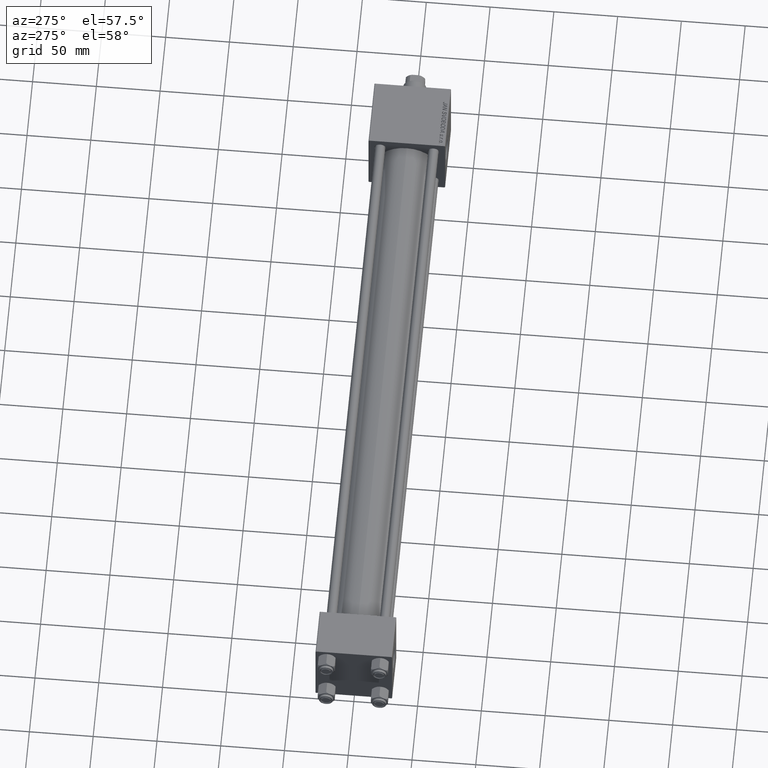
[diagram: clean part render]
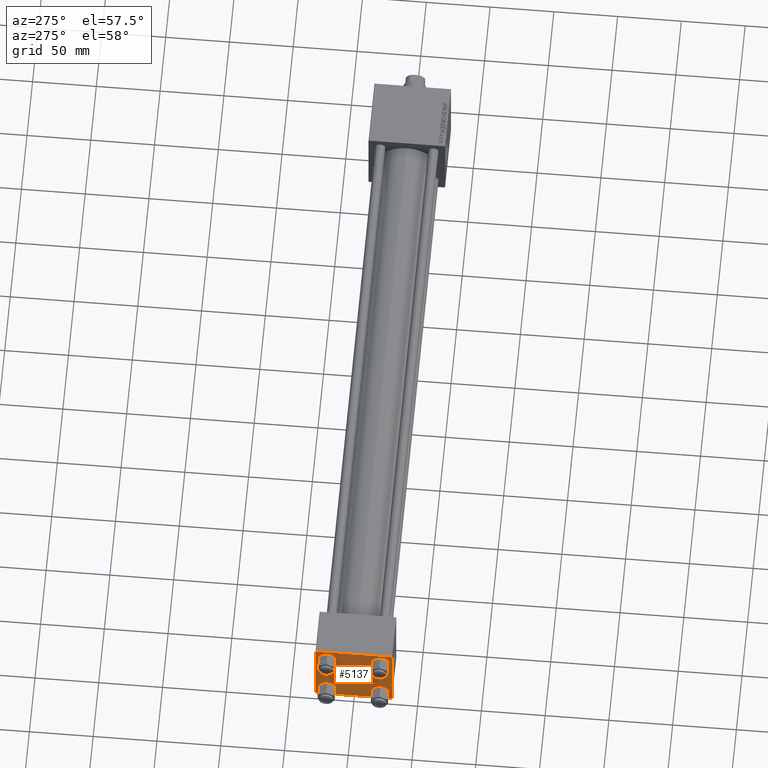
[diagram: same view with one face highlighted and labeled with its STEP entity id]
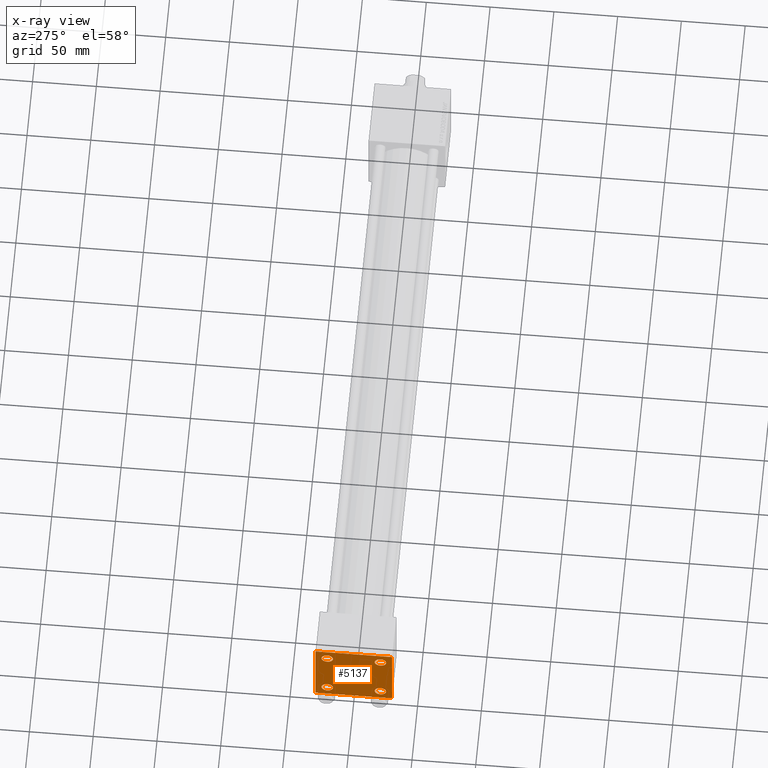
[diagram: x-ray of the same camera — body ghosted, the highlighted face saturated]
A machine part, auxiliary view. The second image highlights one B-rep face of the part: STEP entity #5137.
The next image is the same camera in x-ray: the body ghosted, the highlighted face saturated — about 0% of this face is hidden behind the body in this view.
In plain terms, the highlighted planar face has unit normal (-1, 0, 0).
Its self-contained STEP definition (entity closure, byte-faithful):
#671 = EDGE_LOOP ( 'NONE', ( #44166, #37470, #47511, #23611, #31467, #34795, #31823, #25400 ) ) ;
#730 = EDGE_CURVE ( 'NONE', #34957, #16853, #46409, .T. ) ;
#898 = EDGE_CURVE ( 'NONE', #16853, #34957, #43168, .T. ) ;
#1291 = CARTESIAN_POINT ( 'NONE',  ( 0.000000000000000000, 29.49999999999997868, -30.00000000000000000 ) ) ;
#1386 = DIRECTION ( 'NONE',  ( 0.000000000000000000, 0.000000000000000000, -1.000000000000000000 ) ) ;
#1433 = EDGE_LOOP ( 'NONE', ( #27398, #48482 ) ) ;
#2826 = VERTEX_POINT ( 'NONE', #20500 ) ;
#2883 = CIRCLE ( 'NONE', #33706, 4.500000000000017764 ) ;
#3221 = DIRECTION ( 'NONE',  ( 0.000000000000000000, -1.000000000000000000, -1.156482317317871725E-16 ) ) ;
#3281 = DIRECTION ( 'NONE',  ( -0.000000000000000000, 0.000000000000000000, 1.000000000000000000 ) ) ;
#3468 = CARTESIAN_POINT ( 'NONE',  ( 0.000000000000000000, 20.84999999999999787, -20.85000000000000142 ) ) ;
#4178 = VECTOR ( 'NONE', #5584, 1000.000000000000000 ) ;
#4239 = AXIS2_PLACEMENT_3D ( 'NONE', #3468, #18943, #19444 ) ;
#4729 = CARTESIAN_POINT ( 'NONE',  ( 0.000000000000000000, -30.00000000000000000, 29.49999999999999289 ) ) ;
#5137 = ADVANCED_FACE ( 'NONE', ( #49253, #11389, #41881, #22550, #38564 ), #38061, .T. ) ;
#5364 = VECTOR ( 'NONE', #23262, 1000.000000000000114 ) ;
#5443 = ORIENTED_EDGE ( 'NONE', *, *, #23373, .T. ) ;
#5584 = DIRECTION ( 'NONE',  ( 0.000000000000000000, -1.000000000000000000, -1.156482317317871725E-16 ) ) ;
#5950 = CARTESIAN_POINT ( 'NONE',  ( 0.000000000000000000, -30.00000000000000000, 29.99999999999999289 ) ) ;
#6266 = AXIS2_PLACEMENT_3D ( 'NONE', #11981, #38902, #35851 ) ;
#6782 = CARTESIAN_POINT ( 'NONE',  ( 0.000000000000000000, 29.99999999999999289, -30.00000000000000000 ) ) ;
#7240 = DIRECTION ( 'NONE',  ( 0.000000000000000000, 0.000000000000000000, -1.000000000000000000 ) ) ;
#7489 = ORIENTED_EDGE ( 'NONE', *, *, #898, .T. ) ;
#7849 = CARTESIAN_POINT ( 'NONE',  ( 0.000000000000000000, 0.000000000000000000, 0.000000000000000000 ) ) ;
#7962 = VECTOR ( 'NONE', #9969, 1000.000000000000114 ) ;
#7991 = VERTEX_POINT ( 'NONE', #1291 ) ;
#8046 = DIRECTION ( 'NONE',  ( 0.000000000000000000, 0.000000000000000000, 1.000000000000000000 ) ) ;
#8413 = DIRECTION ( 'NONE',  ( -0.000000000000000000, 0.7071067811865474617, 0.7071067811865474617 ) ) ;
#8668 = LINE ( 'NONE', #24136, #39428 ) ;
#8793 = VERTEX_POINT ( 'NONE', #41402 ) ;
#9557 = CIRCLE ( 'NONE', #21727, 4.500000000000017764 ) ;
#9969 = DIRECTION ( 'NONE',  ( 0.000000000000000000, -0.7071067811865474617, 0.7071067811865474617 ) ) ;
#10331 = CARTESIAN_POINT ( 'NONE',  ( 0.000000000000000000, -20.84999999999999076, 20.85000000000000497 ) ) ;
#10632 = CARTESIAN_POINT ( 'NONE',  ( 0.000000000000000000, -29.49999999999998579, 29.99999999999999289 ) ) ;
#11080 = DIRECTION ( 'NONE',  ( 1.000000000000000000, -0.000000000000000000, 0.000000000000000000 ) ) ;
#11170 = CARTESIAN_POINT ( 'NONE',  ( 0.000000000000000000, -20.84999999999999076, -25.35000000000002274 ) ) ;
#11389 = FACE_BOUND ( 'NONE', #14116, .T. ) ;
#11981 = CARTESIAN_POINT ( 'NONE',  ( 0.000000000000000000, 20.84999999999999787, 20.85000000000000142 ) ) ;
#12220 = CARTESIAN_POINT ( 'NONE',  ( -0.000000000000000000, -29.74999999999999645, 29.74999999999999645 ) ) ;
#13548 = AXIS2_PLACEMENT_3D ( 'NONE', #10331, #11080, #45626 ) ;
#14116 = EDGE_LOOP ( 'NONE', ( #44246, #39722 ) ) ;
#14344 = DIRECTION ( 'NONE',  ( 0.000000000000000000, 0.000000000000000000, 1.000000000000000000 ) ) ;
#15865 = VERTEX_POINT ( 'NONE', #11170 ) ;
#16057 = CARTESIAN_POINT ( 'NONE',  ( 0.000000000000000000, 29.99999999999999289, -29.50000000000000000 ) ) ;
#16147 = CARTESIAN_POINT ( 'NONE',  ( 0.000000000000000000, -29.50000000000000000, -30.00000000000000711 ) ) ;
#16316 = CARTESIAN_POINT ( 'NONE',  ( 0.000000000000000000, -20.84999999999999076, 25.35000000000002274 ) ) ;
#16552 = EDGE_CURVE ( 'NONE', #2826, #23951, #37861, .T. ) ;
#16853 = VERTEX_POINT ( 'NONE', #39856 ) ;
#17529 = AXIS2_PLACEMENT_3D ( 'NONE', #48266, #44714, #25632 ) ;
#17634 = DIRECTION ( 'NONE',  ( 0.000000000000000000, 0.000000000000000000, 1.000000000000000000 ) ) ;
#17901 = LINE ( 'NONE', #33403, #33736 ) ;
#18159 = VERTEX_POINT ( 'NONE', #10632 ) ;
#18343 = EDGE_CURVE ( 'NONE', #23951, #2826, #9557, .T. ) ;
#18679 = EDGE_LOOP ( 'NONE', ( #42046, #7489 ) ) ;
#18943 = DIRECTION ( 'NONE',  ( 1.000000000000000000, -0.000000000000000000, 0.000000000000000000 ) ) ;
#19444 = DIRECTION ( 'NONE',  ( 0.000000000000000000, 0.000000000000000000, 1.000000000000000000 ) ) ;
#20045 = VECTOR ( 'NONE', #8413, 1000.000000000000114 ) ;
#20500 = CARTESIAN_POINT ( 'NONE',  ( 0.000000000000000000, 20.84999999999999787, 25.35000000000001918 ) ) ;
#20667 = EDGE_CURVE ( 'NONE', #24081, #18159, #35339, .T. ) ;
#20928 = AXIS2_PLACEMENT_3D ( 'NONE', #42842, #50204, #8046 ) ;
#21304 = LINE ( 'NONE', #48237, #4178 ) ;
#21727 = AXIS2_PLACEMENT_3D ( 'NONE', #45136, #40819, #37998 ) ;
#22550 = FACE_BOUND ( 'NONE', #1433, .T. ) ;
#23262 = DIRECTION ( 'NONE',  ( 0.000000000000000000, 0.7071067811865474617, -0.7071067811865474617 ) ) ;
#23373 = EDGE_CURVE ( 'NONE', #42358, #42712, #2883, .T. ) ;
#23611 = ORIENTED_EDGE ( 'NONE', *, *, #33427, .T. ) ;
#23951 = VERTEX_POINT ( 'NONE', #37523 ) ;
#24053 = EDGE_CURVE ( 'NONE', #25084, #8793, #42841, .T. ) ;
#24081 = VERTEX_POINT ( 'NONE', #4729 ) ;
#24136 = CARTESIAN_POINT ( 'NONE',  ( 0.000000000000000000, 29.74999999999957723, -29.75000000000040501 ) ) ;
#24213 = EDGE_CURVE ( 'NONE', #8793, #40355, #17901, .T. ) ;
#24630 = EDGE_CURVE ( 'NONE', #40355, #7991, #8668, .T. ) ;
#25084 = VERTEX_POINT ( 'NONE', #47084 ) ;
#25254 = DIRECTION ( 'NONE',  ( 1.000000000000000000, -0.000000000000000000, 0.000000000000000000 ) ) ;
#25400 = ORIENTED_EDGE ( 'NONE', *, *, #24053, .T. ) ;
#25632 = DIRECTION ( 'NONE',  ( 0.000000000000000000, 0.000000000000000000, 1.000000000000000000 ) ) ;
#26002 = CARTESIAN_POINT ( 'NONE',  ( 0.000000000000000000, -20.84999999999999076, 20.85000000000000497 ) ) ;
#26299 = EDGE_CURVE ( 'NONE', #24081, #28024, #48108, .T. ) ;
#27398 = ORIENTED_EDGE ( 'NONE', *, *, #16552, .T. ) ;
#28024 = VERTEX_POINT ( 'NONE', #41267 ) ;
#28222 = ORIENTED_EDGE ( 'NONE', *, *, #30470, .T. ) ;
#28591 = CARTESIAN_POINT ( 'NONE',  ( 0.000000000000000000, 20.84999999999999787, -16.34999999999998366 ) ) ;
#28592 = EDGE_CURVE ( 'NONE', #15865, #40551, #32933, .T. ) ;
#30049 = CARTESIAN_POINT ( 'NONE',  ( 0.000000000000000000, 20.84999999999999787, -20.85000000000000142 ) ) ;
#30470 = EDGE_CURVE ( 'NONE', #42712, #42358, #49223, .T. ) ;
#31467 = ORIENTED_EDGE ( 'NONE', *, *, #26299, .F. ) ;
#31823 = ORIENTED_EDGE ( 'NONE', *, *, #44398, .F. ) ;
#32021 = EDGE_CURVE ( 'NONE', #7991, #40042, #41566, .T. ) ;
#32524 = DIRECTION ( 'NONE',  ( -0.000000000000000000, -0.7071067811865574537, -0.7071067811865376918 ) ) ;
#32606 = AXIS2_PLACEMENT_3D ( 'NONE', #30049, #32874, #17634 ) ;
#32759 = AXIS2_PLACEMENT_3D ( 'NONE', #7849, #45441, #3281 ) ;
#32874 = DIRECTION ( 'NONE',  ( 1.000000000000000000, -0.000000000000000000, 0.000000000000000000 ) ) ;
#32933 = CIRCLE ( 'NONE', #17529, 4.500000000000017764 ) ;
#33078 = CARTESIAN_POINT ( 'NONE',  ( 0.000000000000000000, -29.75000000000001066, -29.75000000000001066 ) ) ;
#33403 = CARTESIAN_POINT ( 'NONE',  ( 0.000000000000000000, 29.99999999999999289, 30.00000000000000000 ) ) ;
#33427 = EDGE_CURVE ( 'NONE', #40042, #28024, #36148, .T. ) ;
#33706 = AXIS2_PLACEMENT_3D ( 'NONE', #26002, #25254, #14344 ) ;
#33736 = VECTOR ( 'NONE', #7240, 1000.000000000000000 ) ;
#33875 = EDGE_CURVE ( 'NONE', #40551, #15865, #48540, .T. ) ;
#34438 = CARTESIAN_POINT ( 'NONE',  ( 0.000000000000000000, -20.84999999999999076, 16.34999999999998721 ) ) ;
#34795 = ORIENTED_EDGE ( 'NONE', *, *, #20667, .T. ) ;
#34957 = VERTEX_POINT ( 'NONE', #28591 ) ;
#35339 = LINE ( 'NONE', #12220, #20045 ) ;
#35851 = DIRECTION ( 'NONE',  ( 0.000000000000000000, 0.000000000000000000, 1.000000000000000000 ) ) ;
#36148 = LINE ( 'NONE', #33078, #7962 ) ;
#36178 = CARTESIAN_POINT ( 'NONE',  ( 0.000000000000000000, -20.84999999999999076, -16.34999999999998721 ) ) ;
#36783 = EDGE_LOOP ( 'NONE', ( #28222, #5443 ) ) ;
#37470 = ORIENTED_EDGE ( 'NONE', *, *, #24630, .T. ) ;
#37523 = CARTESIAN_POINT ( 'NONE',  ( 0.000000000000000000, 20.84999999999999787, 16.34999999999998366 ) ) ;
#37861 = CIRCLE ( 'NONE', #6266, 4.500000000000017764 ) ;
#37998 = DIRECTION ( 'NONE',  ( 0.000000000000000000, 0.000000000000000000, 1.000000000000000000 ) ) ;
#38061 = PLANE ( 'NONE',  #32759 ) ;
#38262 = CARTESIAN_POINT ( 'NONE',  ( 0.000000000000000000, 29.74999999999999645, 29.74999999999999645 ) ) ;
#38564 = FACE_OUTER_BOUND ( 'NONE', #671, .T. ) ;
#38902 = DIRECTION ( 'NONE',  ( 1.000000000000000000, -0.000000000000000000, 0.000000000000000000 ) ) ;
#39428 = VECTOR ( 'NONE', #32524, 999.9999999999998863 ) ;
#39579 = VECTOR ( 'NONE', #3221, 1000.000000000000000 ) ;
#39722 = ORIENTED_EDGE ( 'NONE', *, *, #28592, .T. ) ;
#39856 = CARTESIAN_POINT ( 'NONE',  ( 0.000000000000000000, 20.84999999999999787, -25.35000000000001918 ) ) ;
#40042 = VERTEX_POINT ( 'NONE', #16147 ) ;
#40355 = VERTEX_POINT ( 'NONE', #16057 ) ;
#40551 = VERTEX_POINT ( 'NONE', #36178 ) ;
#40819 = DIRECTION ( 'NONE',  ( 1.000000000000000000, -0.000000000000000000, 0.000000000000000000 ) ) ;
#41267 = CARTESIAN_POINT ( 'NONE',  ( 0.000000000000000000, -30.00000000000000000, -29.50000000000001776 ) ) ;
#41402 = CARTESIAN_POINT ( 'NONE',  ( 0.000000000000000000, 29.99999999999999289, 29.50000000000000000 ) ) ;
#41566 = LINE ( 'NONE', #6782, #39579 ) ;
#41881 = FACE_BOUND ( 'NONE', #18679, .T. ) ;
#42046 = ORIENTED_EDGE ( 'NONE', *, *, #730, .T. ) ;
#42358 = VERTEX_POINT ( 'NONE', #34438 ) ;
#42712 = VERTEX_POINT ( 'NONE', #16316 ) ;
#42841 = LINE ( 'NONE', #38262, #5364 ) ;
#42842 = CARTESIAN_POINT ( 'NONE',  ( 0.000000000000000000, -20.84999999999999076, -20.85000000000000497 ) ) ;
#43168 = CIRCLE ( 'NONE', #32606, 4.500000000000017764 ) ;
#44166 = ORIENTED_EDGE ( 'NONE', *, *, #24213, .T. ) ;
#44246 = ORIENTED_EDGE ( 'NONE', *, *, #33875, .T. ) ;
#44398 = EDGE_CURVE ( 'NONE', #25084, #18159, #21304, .T. ) ;
#44714 = DIRECTION ( 'NONE',  ( 1.000000000000000000, -0.000000000000000000, 0.000000000000000000 ) ) ;
#45136 = CARTESIAN_POINT ( 'NONE',  ( 0.000000000000000000, 20.84999999999999787, 20.85000000000000142 ) ) ;
#45441 = DIRECTION ( 'NONE',  ( -1.000000000000000000, 0.000000000000000000, -0.000000000000000000 ) ) ;
#45626 = DIRECTION ( 'NONE',  ( 0.000000000000000000, 0.000000000000000000, 1.000000000000000000 ) ) ;
#45891 = VECTOR ( 'NONE', #1386, 1000.000000000000000 ) ;
#46409 = CIRCLE ( 'NONE', #4239, 4.500000000000017764 ) ;
#47084 = CARTESIAN_POINT ( 'NONE',  ( 0.000000000000000000, 29.49999999999999289, 30.00000000000000000 ) ) ;
#47511 = ORIENTED_EDGE ( 'NONE', *, *, #32021, .T. ) ;
#48108 = LINE ( 'NONE', #5950, #45891 ) ;
#48237 = CARTESIAN_POINT ( 'NONE',  ( 0.000000000000000000, 29.99999999999999289, 30.00000000000000000 ) ) ;
#48266 = CARTESIAN_POINT ( 'NONE',  ( 0.000000000000000000, -20.84999999999999076, -20.85000000000000497 ) ) ;
#48482 = ORIENTED_EDGE ( 'NONE', *, *, #18343, .T. ) ;
#48540 = CIRCLE ( 'NONE', #20928, 4.500000000000017764 ) ;
#49223 = CIRCLE ( 'NONE', #13548, 4.500000000000017764 ) ;
#49253 = FACE_BOUND ( 'NONE', #36783, .T. ) ;
#50204 = DIRECTION ( 'NONE',  ( 1.000000000000000000, -0.000000000000000000, 0.000000000000000000 ) ) ;